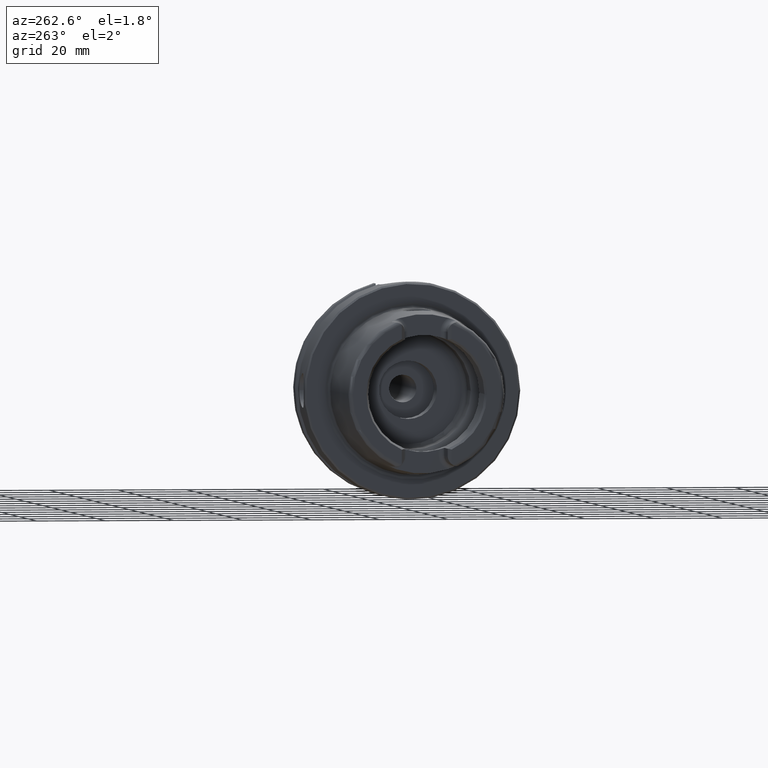
[diagram: clean part render]
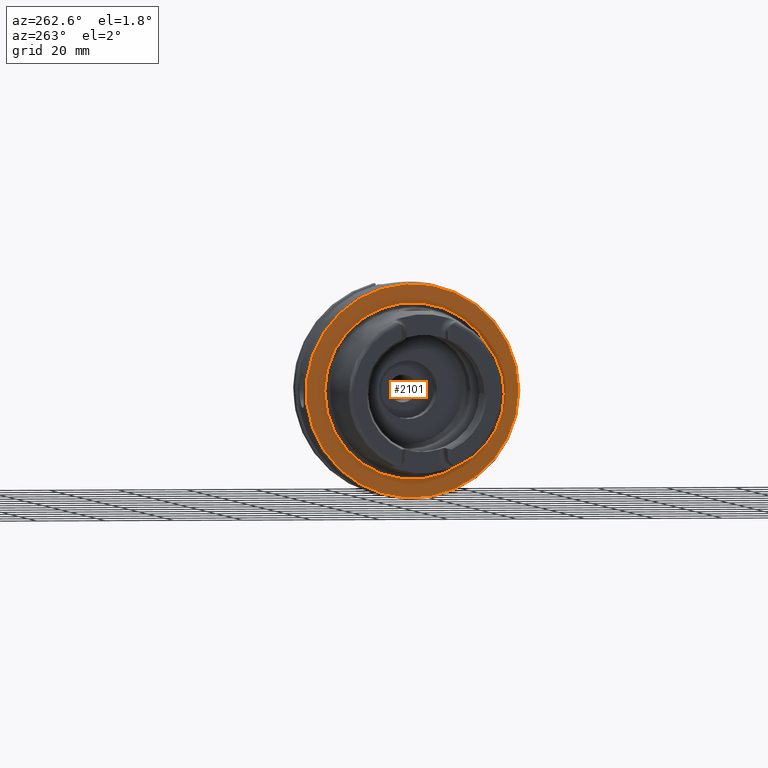
[diagram: same view with one face highlighted and labeled with its STEP entity id]
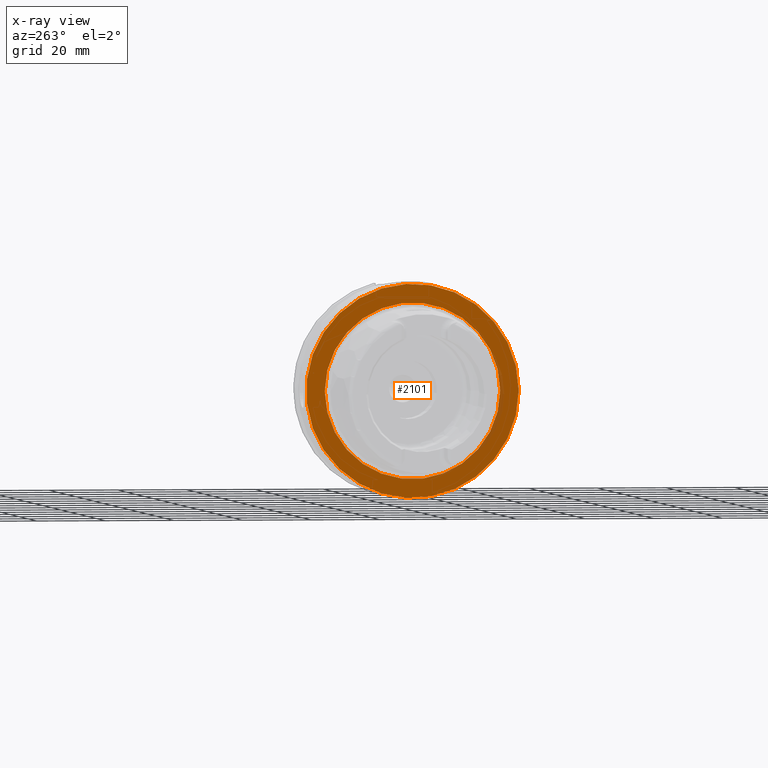
[diagram: x-ray of the same camera — body ghosted, the highlighted face saturated]
A machine part, auxiliary view. The second image highlights one B-rep face of the part: STEP entity #2101.
The next image is the same camera in x-ray: the body ghosted, the highlighted face saturated — about 4% of this face is hidden behind the body in this view.
In plain terms, the highlighted planar face has unit normal (-1, 0, 0).
Its self-contained STEP definition (entity closure, byte-faithful):
#101=FACE_BOUND('',#460,.T.);
#143=PLANE('',#2371);
#327=FACE_OUTER_BOUND('',#459,.T.);
#459=EDGE_LOOP('',(#1947));
#460=EDGE_LOOP('',(#1948));
#805=CIRCLE('',#2370,25.5879092835167);
#806=CIRCLE('',#2372,31.);
#1012=VERTEX_POINT('',#4448);
#1013=VERTEX_POINT('',#4452);
#1325=EDGE_CURVE('',#1012,#1012,#805,.T.);
#1326=EDGE_CURVE('',#1013,#1013,#806,.T.);
#1947=ORIENTED_EDGE('',*,*,#1326,.F.);
#1948=ORIENTED_EDGE('',*,*,#1325,.T.);
#2101=ADVANCED_FACE('',(#327,#101),#143,.T.);
#2370=AXIS2_PLACEMENT_3D('',#4450,#2973,#2974);
#2371=AXIS2_PLACEMENT_3D('',#4451,#2975,#2976);
#2372=AXIS2_PLACEMENT_3D('',#4453,#2977,#2978);
#2973=DIRECTION('center_axis',(1.,0.,0.));
#2974=DIRECTION('ref_axis',(0.,0.,-1.));
#2975=DIRECTION('center_axis',(-1.,0.,0.));
#2976=DIRECTION('ref_axis',(0.,0.,1.));
#2977=DIRECTION('center_axis',(1.,0.,0.));
#2978=DIRECTION('ref_axis',(0.,0.,-1.));
#4448=CARTESIAN_POINT('',(-3.55618312575245E-16,-25.5879092835167,-3.13361512009315E-15));
#4450=CARTESIAN_POINT('Origin',(0.,0.,0.));
#4451=CARTESIAN_POINT('Origin',(0.,31.,0.));
#4452=CARTESIAN_POINT('',(-5.89805981832114E-16,-31.,-3.7964050773568E-15));
#4453=CARTESIAN_POINT('Origin',(0.,0.,0.));